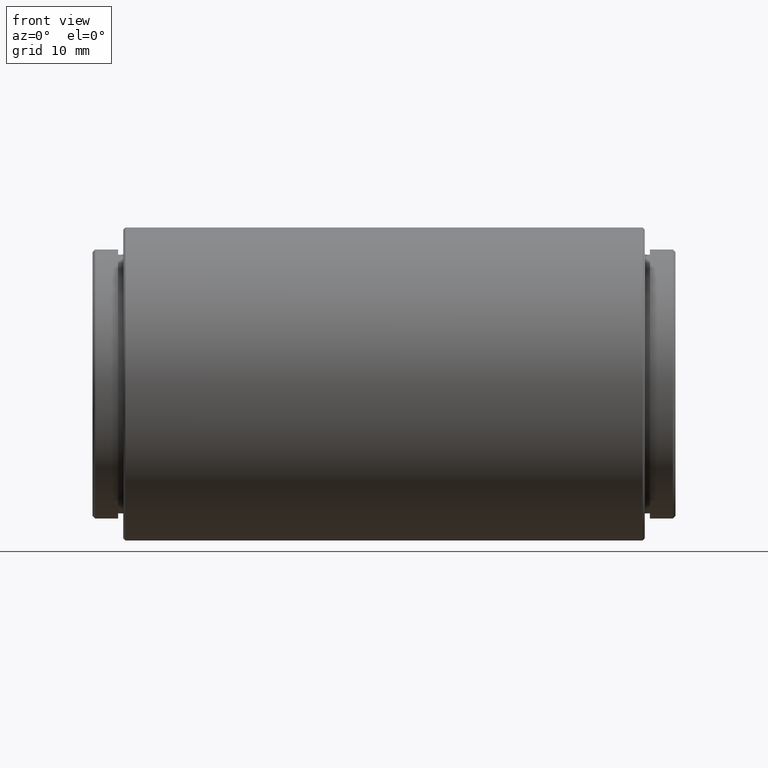
[diagram: clean part render]
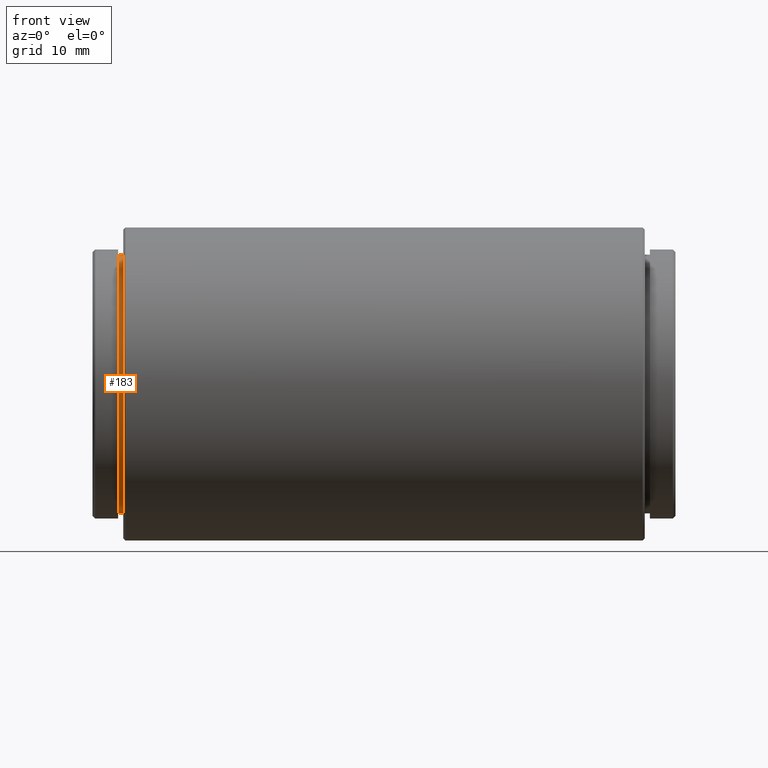
[diagram: same view with one face highlighted and labeled with its STEP entity id]
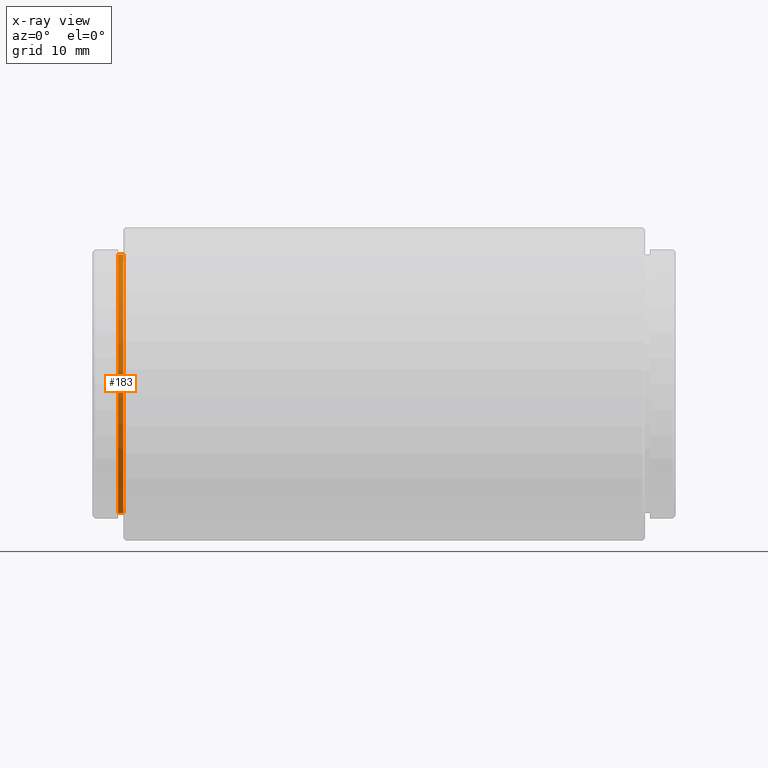
[diagram: x-ray of the same camera — body ghosted, the highlighted face saturated]
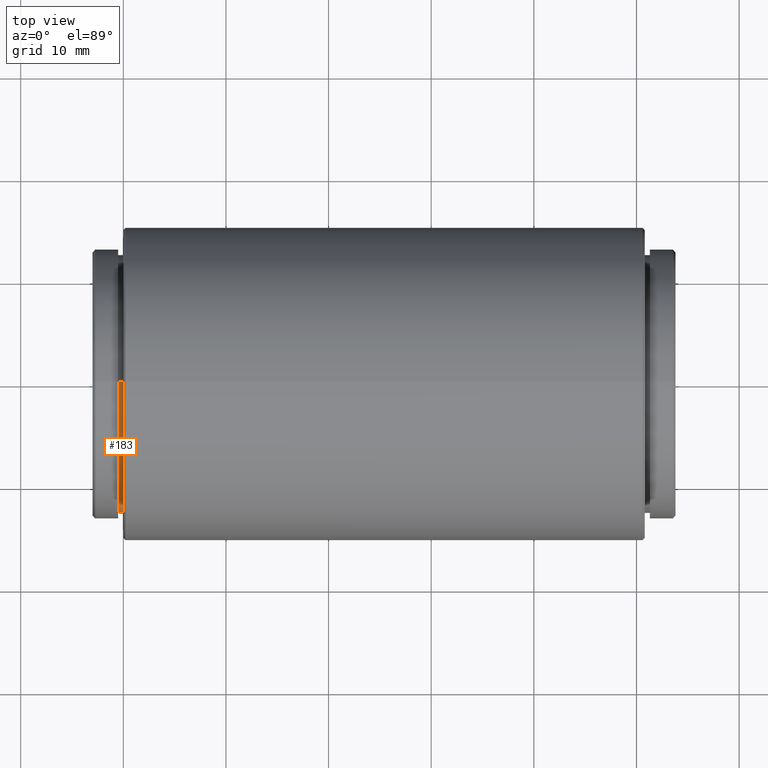
[diagram: same view with one face highlighted and labeled with its STEP entity id]
A machine part, front view. The second image highlights one B-rep face of the part: STEP entity #183.
The next image is the same camera in x-ray: the body ghosted, the highlighted face saturated — about 0% of this face is hidden behind the body in this view.
A second angle (top view) of the same face is appended — the face is thin or edge-on in the first view.
In plain terms, the highlighted cylindrical surface (partial cylindrical patch) has radius 12.6 mm, axis along (1, -0, -0).
Its self-contained STEP definition (entity closure, byte-faithful):
#27 = EDGE_CURVE ( 'NONE', #822, #234, #318, .T. ) ;
#35 = CARTESIAN_POINT ( 'NONE',  ( -50.00000000000000000, 0.000000000000000000, 0.000000000000000000 ) ) ;
#89 = CARTESIAN_POINT ( 'NONE',  ( -50.50000000000000000, 0.000000000000000000, -12.60000000000000142 ) ) ;
#129 = CARTESIAN_POINT ( 'NONE',  ( -50.50000000000000000, 0.000000000000000000, -12.60000000000000142 ) ) ;
#131 = CARTESIAN_POINT ( 'NONE',  ( -50.50000000000000000, 0.000000000000000000, 0.000000000000000000 ) ) ;
#183 = ADVANCED_FACE ( 'NONE', ( #520 ), #535, .T. ) ;
#199 = DIRECTION ( 'NONE',  ( 0.000000000000000000, 0.000000000000000000, -1.000000000000000000 ) ) ;
#223 = CARTESIAN_POINT ( 'NONE',  ( -50.50000000000000000, 1.543054966925665273E-15, 12.60000000000000142 ) ) ;
#234 = VERTEX_POINT ( 'NONE', #282 ) ;
#246 = EDGE_CURVE ( 'NONE', #234, #849, #781, .T. ) ;
#249 = DIRECTION ( 'NONE',  ( 0.000000000000000000, 0.000000000000000000, 1.000000000000000000 ) ) ;
#250 = DIRECTION ( 'NONE',  ( 1.000000000000000000, -0.000000000000000000, -0.000000000000000000 ) ) ;
#257 = EDGE_LOOP ( 'NONE', ( #380, #548, #633, #659 ) ) ;
#282 = CARTESIAN_POINT ( 'NONE',  ( -50.00000000000000000, 1.543054966925665273E-15, 12.60000000000000142 ) ) ;
#318 = LINE ( 'NONE', #899, #576 ) ;
#373 = CIRCLE ( 'NONE', #765, 12.60000000000000142 ) ;
#380 = ORIENTED_EDGE ( 'NONE', *, *, #27, .F. ) ;
#452 = EDGE_CURVE ( 'NONE', #772, #849, #572, .T. ) ;
#518 = VECTOR ( 'NONE', #250, 1000.000000000000000 ) ;
#519 = DIRECTION ( 'NONE',  ( 1.000000000000000000, -0.000000000000000000, -0.000000000000000000 ) ) ;
#520 = FACE_OUTER_BOUND ( 'NONE', #257, .T. ) ;
#535 = CYLINDRICAL_SURFACE ( 'NONE', #539, 12.60000000000000142 ) ;
#539 = AXIS2_PLACEMENT_3D ( 'NONE', #131, #519, #199 ) ;
#548 = ORIENTED_EDGE ( 'NONE', *, *, #1018, .T. ) ;
#567 = CARTESIAN_POINT ( 'NONE',  ( -50.50000000000000000, 0.000000000000000000, 0.000000000000000000 ) ) ;
#572 = LINE ( 'NONE', #89, #518 ) ;
#576 = VECTOR ( 'NONE', #972, 1000.000000000000000 ) ;
#620 = CARTESIAN_POINT ( 'NONE',  ( -50.00000000000000000, 0.000000000000000000, -12.60000000000000142 ) ) ;
#633 = ORIENTED_EDGE ( 'NONE', *, *, #452, .T. ) ;
#659 = ORIENTED_EDGE ( 'NONE', *, *, #246, .F. ) ;
#728 = DIRECTION ( 'NONE',  ( 1.000000000000000000, -0.000000000000000000, -0.000000000000000000 ) ) ;
#765 = AXIS2_PLACEMENT_3D ( 'NONE', #567, #728, #249 ) ;
#772 = VERTEX_POINT ( 'NONE', #129 ) ;
#781 = CIRCLE ( 'NONE', #1035, 12.60000000000000142 ) ;
#822 = VERTEX_POINT ( 'NONE', #223 ) ;
#849 = VERTEX_POINT ( 'NONE', #620 ) ;
#852 = DIRECTION ( 'NONE',  ( 1.000000000000000000, -0.000000000000000000, -0.000000000000000000 ) ) ;
#899 = CARTESIAN_POINT ( 'NONE',  ( -50.50000000000000000, 1.543054966925665273E-15, 12.60000000000000142 ) ) ;
#972 = DIRECTION ( 'NONE',  ( 1.000000000000000000, -0.000000000000000000, -0.000000000000000000 ) ) ;
#1016 = DIRECTION ( 'NONE',  ( 0.000000000000000000, 0.000000000000000000, -1.000000000000000000 ) ) ;
#1018 = EDGE_CURVE ( 'NONE', #822, #772, #373, .T. ) ;
#1035 = AXIS2_PLACEMENT_3D ( 'NONE', #35, #852, #1016 ) ;